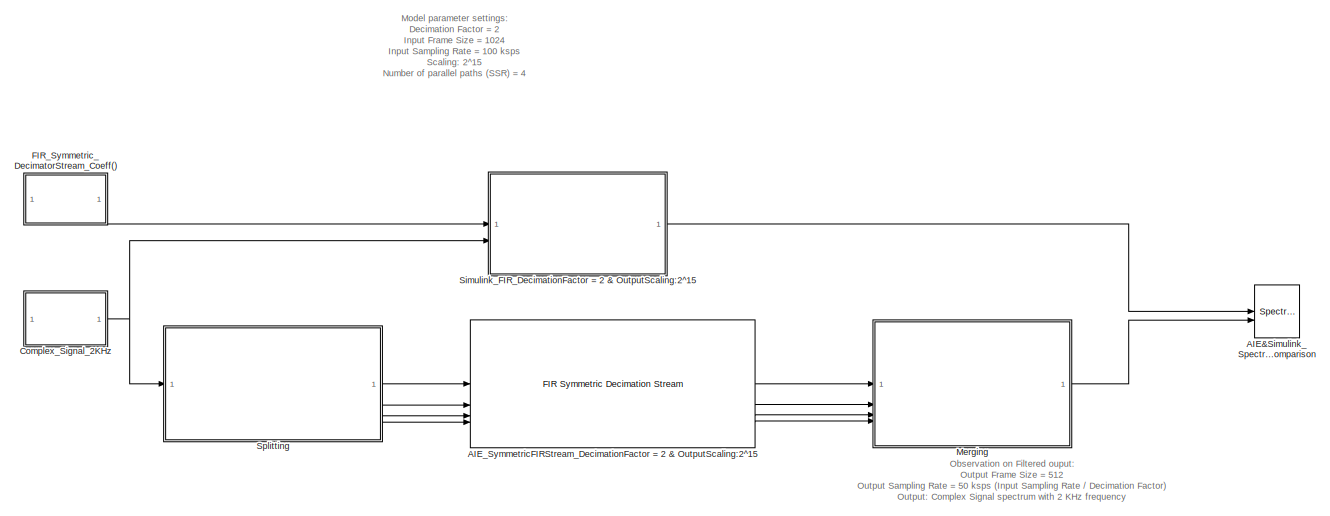
[diagram: root canvas - part 1/2, center side, full height]
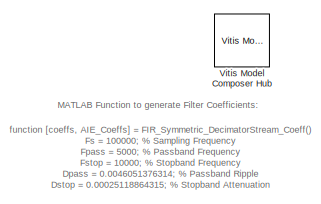
[diagram: root canvas - part 2/2, top left region]
MODEL slx_0c810d0871c6
KIND model
CONFIG AbsTol = auto
CONFIG EnableMultiTasking = off
CONFIG FixedStep = auto
CONFIG MaxStep = auto
CONFIG MinStep = auto
CONFIG PostLoadFcn = Fs = 100000;  % Sampling Frequency\nFpass = 5000;              % Passband Frequency\nFstop = 10000;             % Stopband Frequency\nDpass = 0.0046051376314;   % Passband Ripple\nDstop = 0.00025118864315;  % Stopband Attenuation\ndens  = 16;                % Density Factor\n% Calculate the order from the parameters using FIRPMORD.\n[N, Fo, Ao, W] = firpmord([Fpass, Fstop]/(Fs/2), [1 0], [Dpass, Dstop]);...<+134ch>
CONFIG RelTol = 1e-3
CONFIG SampleTimeConstraint = Unconstrained
CONFIG SolverName = VariableStepAuto
CONFIG StartTime = 0.0
CONFIG StopTime = 1
BLOCK [SpectrumAnalyzer] AIE&Simulink_Spectrum_Comparison
  AllowFFTLengthLessThanSamplesPerUpdate = on
  AveragingMethod = Exponential
  ChannelNames = [""]
  DefaultConfigurationName = spbscopes.SpectrumAnalyzerBlockCfg
  NumInputPorts = 2
  ScopeSpecificationString = spbscopes.SpectrumAnalyzerBlockCfg('CurrentConfiguration', extmgr.ConfigurationSet(extmgr.Configuration('Core','General UI',true,'FigureColor',[0.16        0.16        0.16]),extmgr.Configuration('Visuals','Spectrum',true,'Title','','YLabel','','MinYLim','26.3648','MaxYLim','124.0786','Legend',true,'AxesProperties',struct('XGrid',{'on','on'},'YGrid',{'on','on'},'ZGrid',{'on','on'},'Color',{[0 0 0]...<+2398ch>
  ShowLegend = on
  WasSavedAsWebScope = on
BLOCK [Reference] AIE_SymmetricFIRStream_DecimationFactor = 2 & OutputScaling:2^15   REF=aieDSP/FIR Symmetric Decimation Stream
  SourceBlock = aieDSP/FIR Symmetric Decimation Stream
  SourceType = FIR Symmetric Decimation Stream
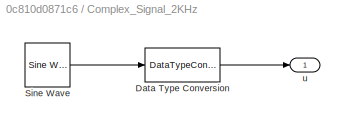
BLOCK [SubSystem] Complex_Signal_2KHz
BLOCK [DataTypeConversion] Complex_Signal_2KHz/Data Type Conversion
  ConvertRealWorld = Stored Integer (SI)
  OutDataTypeStr = int16
  OutMax = [1]
  OutMin = [-1]
  RndMeth = Floor
  SaturateOnIntegerOverflow = off
BLOCK [Reference] Complex_Signal_2KHz/Sine Wave  REF=dspsrcs4/Sine Wave
  SourceBlock = dspsrcs4/Sine Wave
  SourceType = Sine Wave
BLOCK [Outport] Complex_Signal_2KHz/u
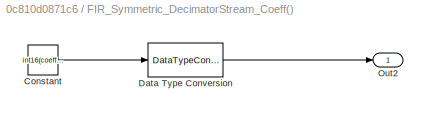
BLOCK [SubSystem] FIR_Symmetric_DecimatorStream_Coeff()
BLOCK [Constant] FIR_Symmetric_DecimatorStream_Coeff()/Constant
  Value = int16(coeffs*2^15)
BLOCK [DataTypeConversion] FIR_Symmetric_DecimatorStream_Coeff()/Data Type Conversion
  ConvertRealWorld = Stored Integer (SI)
  OutDataTypeStr = int16
  OutMax = [1]
  OutMin = [-1]
  RndMeth = Floor
  SaturateOnIntegerOverflow = off
BLOCK [Outport] FIR_Symmetric_DecimatorStream_Coeff()/Out2
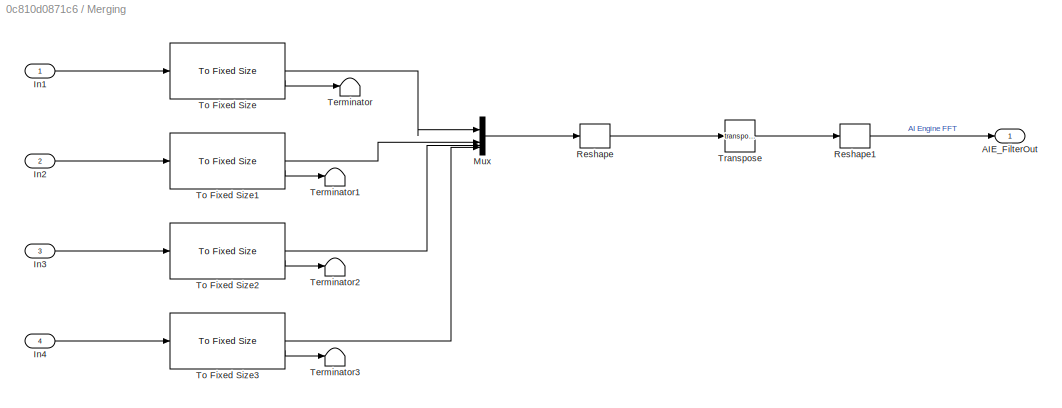
BLOCK [SubSystem] Merging
BLOCK [Outport] Merging/AIE_FilterOut
BLOCK [Inport] Merging/In1
BLOCK [Inport] Merging/In2
  Port = 2
BLOCK [Inport] Merging/In3
  Port = 3
BLOCK [Inport] Merging/In4
  Port = 4
BLOCK [Mux] Merging/Mux
  DisplayOption = bar
BLOCK [Reshape] Merging/Reshape
  OutputDimensionality = Customize
  OutputDimensions = [128, 4]
BLOCK [Reshape] Merging/Reshape1
  OutputDimensions = [1, 10]
BLOCK [Terminator] Merging/Terminator
BLOCK [Terminator] Merging/Terminator1
BLOCK [Terminator] Merging/Terminator2
BLOCK [Terminator] Merging/Terminator3
BLOCK [Reference] Merging/To Fixed Size  REF=aieUtilities/To Fixed Size
  SourceBlock = aieUtilities/To Fixed Size
  SourceType = To Fixed Size
BLOCK [Reference] Merging/To Fixed Size1  REF=aieUtilities/To Fixed Size
  SourceBlock = aieUtilities/To Fixed Size
  SourceType = To Fixed Size
BLOCK [Reference] Merging/To Fixed Size2  REF=aieUtilities/To Fixed Size
  SourceBlock = aieUtilities/To Fixed Size
  SourceType = To Fixed Size
BLOCK [Reference] Merging/To Fixed Size3  REF=aieUtilities/To Fixed Size
  SourceBlock = aieUtilities/To Fixed Size
  SourceType = To Fixed Size
BLOCK [Math] Merging/Transpose
  Operator = transpose
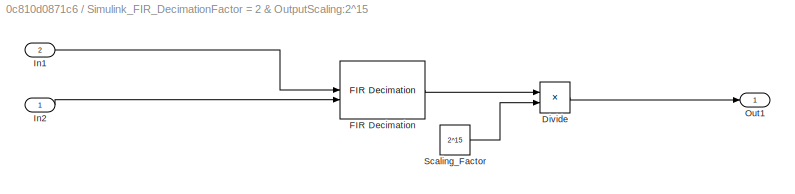
BLOCK [SubSystem] Simulink_FIR_DecimationFactor = 2 & OutputScaling:2^15
BLOCK [Product] Simulink_FIR_DecimationFactor = 2 & OutputScaling:2^15/Divide
  Inputs = */
  OutDataTypeStr = int16
BLOCK [Reference] Simulink_FIR_DecimationFactor = 2 & OutputScaling:2^15/FIR Decimation  REF=dspmlti4/FIR
Decimation
  SourceBlock = dspmlti4/FIR\nDecimation
  SourceType = FIR Decimation
  UserDataPersistent = on
BLOCK [Inport] Simulink_FIR_DecimationFactor = 2 & OutputScaling:2^15/In1
  Port = 2
BLOCK [Inport] Simulink_FIR_DecimationFactor = 2 & OutputScaling:2^15/In2
BLOCK [Outport] Simulink_FIR_DecimationFactor = 2 & OutputScaling:2^15/Out1
BLOCK [Constant] Simulink_FIR_DecimationFactor = 2 & OutputScaling:2^15/Scaling_Factor
  OutDataTypeStr = int32
  Value = 2^15
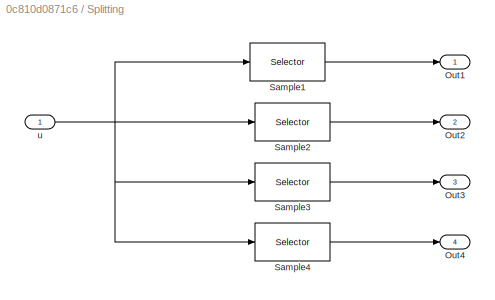
BLOCK [SubSystem] Splitting
BLOCK [Outport] Splitting/Out1
BLOCK [Outport] Splitting/Out2
  Port = 2
BLOCK [Outport] Splitting/Out3
  Port = 3
BLOCK [Outport] Splitting/Out4
  Port = 4
BLOCK [Selector] Splitting/Sample1
  IndexOptions = Index vector (dialog)
  Indices = 1:4:1024
  InputPortWidth = 1024
  OutputSizes = 1
BLOCK [Selector] Splitting/Sample2
  IndexOptions = Index vector (dialog)
  Indices = 2:4:1024
  InputPortWidth = 1024
  OutputSizes = 1
BLOCK [Selector] Splitting/Sample3
  IndexOptions = Index vector (dialog)
  Indices = 3:4:1024
  InputPortWidth = 1024
  OutputSizes = 1
BLOCK [Selector] Splitting/Sample4
  IndexOptions = Index vector (dialog)
  Indices = 4:4:1024
  InputPortWidth = 1024
  OutputSizes = 1
BLOCK [Inport] Splitting/u
BLOCK [Reference] Vitis Model Composer Hub  REF=vmcUtilities/Vitis Model Composer Hub
  SourceBlock = vmcUtilities/Vitis Model Composer Hub
  SourceType = VMC Hub
  Tag = genX
  UserDataPersistent = on
ANNOTATION (root): function [coeffs, AIE_Coeffs] = FIR_Symmetric_DecimatorStream_Coeff() Fs = 100000; % Sampling Frequency Fpass = 5000; % Passband Frequency Fstop = 10000; % Stopband Frequency Dpass = 0.0046051376314; % Passband Ripple Dstop = 0.00025118864315; % Stopband Attenuation dens = 16; % Density Factor % Calculate the order from the parameters using FIRPMORD. [N, Fo, Ao, W] = firpmord([Fpass, Fstop]/(Fs/2)...<+163ch>
ANNOTATION (root): Model parameter settings: Decimation Factor = 2 Input Frame Size = 1024 Input Sampling Rate = 100 ksps Scaling: 2^15 Number of parallel paths (SSR) = 4 Input: Complex Signal with 2 KHz frequency
ANNOTATION (root): Observation on Filtered ouput: Output Frame Size = 512 Output Sampling Rate = 50 ksps (Input Sampling Rate / Decimation Factor) Output: Complex Signal spectrum with 2 KHz frequency
ANNOTATION (root): MATLAB Function to generate Filter Coefficients:
LINE AIE_SymmetricFIRStream_DecimationFactor = 2 & OutputScaling:2^15 :1 -> Merging:1
LINE AIE_SymmetricFIRStream_DecimationFactor = 2 & OutputScaling:2^15 :2 -> Merging:2
LINE AIE_SymmetricFIRStream_DecimationFactor = 2 & OutputScaling:2^15 :3 -> Merging:3
LINE AIE_SymmetricFIRStream_DecimationFactor = 2 & OutputScaling:2^15 :4 -> Merging:4
LINE Complex_Signal_2KHz/Data Type Conversion:1 -> Complex_Signal_2KHz/u:1
LINE Complex_Signal_2KHz/Sine Wave:1 -> Complex_Signal_2KHz/Data Type Conversion:1
NET Complex_Signal_2KHz:1 -> Simulink_FIR_DecimationFactor = 2 & OutputScaling:2^15:2, Splitting:1
LINE FIR_Symmetric_DecimatorStream_Coeff()/Constant:1 -> FIR_Symmetric_DecimatorStream_Coeff()/Data Type Conversion:1
LINE FIR_Symmetric_DecimatorStream_Coeff()/Data Type Conversion:1 -> FIR_Symmetric_DecimatorStream_Coeff()/Out2:1
LINE FIR_Symmetric_DecimatorStream_Coeff():1 -> Simulink_FIR_DecimationFactor = 2 & OutputScaling:2^15:1
LINE Merging/In1:1 -> Merging/To Fixed Size:1
LINE Merging/In2:1 -> Merging/To Fixed Size1:1
LINE Merging/In3:1 -> Merging/To Fixed Size2:1
LINE Merging/In4:1 -> Merging/To Fixed Size3:1
LINE Merging/Mux:1 -> Merging/Reshape:1
LINE Merging/Reshape1:1 -> Merging/AIE_FilterOut:1
LINE Merging/Reshape:1 -> Merging/Transpose:1
LINE Merging/To Fixed Size1:1 -> Merging/Mux:2
LINE Merging/To Fixed Size1:2 -> Merging/Terminator1:1
LINE Merging/To Fixed Size2:1 -> Merging/Mux:3
LINE Merging/To Fixed Size2:2 -> Merging/Terminator2:1
LINE Merging/To Fixed Size3:1 -> Merging/Mux:4
LINE Merging/To Fixed Size3:2 -> Merging/Terminator3:1
LINE Merging/To Fixed Size:1 -> Merging/Mux:1
LINE Merging/To Fixed Size:2 -> Merging/Terminator:1
LINE Merging/Transpose:1 -> Merging/Reshape1:1
LINE Merging:1 -> AIE&Simulink_Spectrum_Comparison:2
LINE Simulink_FIR_DecimationFactor = 2 & OutputScaling:2^15/Divide:1 -> Simulink_FIR_DecimationFactor = 2 & OutputScaling:2^15/Out1:1
LINE Simulink_FIR_DecimationFactor = 2 & OutputScaling:2^15/FIR Decimation:1 -> Simulink_FIR_DecimationFactor = 2 & OutputScaling:2^15/Divide:1
LINE Simulink_FIR_DecimationFactor = 2 & OutputScaling:2^15/In1:1 -> Simulink_FIR_DecimationFactor = 2 & OutputScaling:2^15/FIR Decimation:1
LINE Simulink_FIR_DecimationFactor = 2 & OutputScaling:2^15/In2:1 -> Simulink_FIR_DecimationFactor = 2 & OutputScaling:2^15/FIR Decimation:2
LINE Simulink_FIR_DecimationFactor = 2 & OutputScaling:2^15/Scaling_Factor:1 -> Simulink_FIR_DecimationFactor = 2 & OutputScaling:2^15/Divide:2
LINE Simulink_FIR_DecimationFactor = 2 & OutputScaling:2^15:1 -> AIE&Simulink_Spectrum_Comparison:1
LINE Splitting/Sample1:1 -> Splitting/Out1:1
LINE Splitting/Sample2:1 -> Splitting/Out2:1
LINE Splitting/Sample3:1 -> Splitting/Out3:1
LINE Splitting/Sample4:1 -> Splitting/Out4:1
NET Splitting/u:1 -> Splitting/Sample1:1, Splitting/Sample2:1, Splitting/Sample3:1, Splitting/Sample4:1
LINE Splitting:1 -> AIE_SymmetricFIRStream_DecimationFactor = 2 & OutputScaling:2^15 :1
LINE Splitting:2 -> AIE_SymmetricFIRStream_DecimationFactor = 2 & OutputScaling:2^15 :2
LINE Splitting:3 -> AIE_SymmetricFIRStream_DecimationFactor = 2 & OutputScaling:2^15 :3
LINE Splitting:4 -> AIE_SymmetricFIRStream_DecimationFactor = 2 & OutputScaling:2^15 :4
note: NET lines group one-source signal fan-out (src -> all destinations, sorted); 1:1 wires keep LINE
